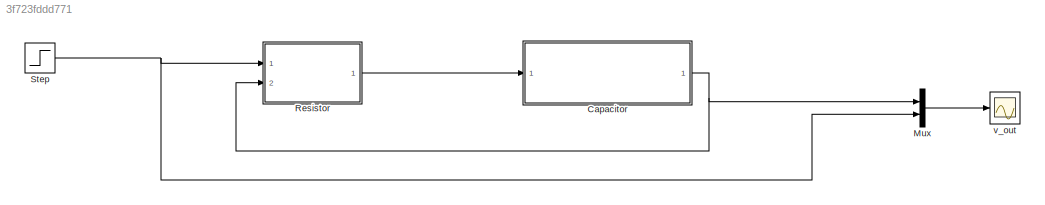
MODEL slx_3f723fddd771
KIND model
CONFIG AbsTol = auto
CONFIG EnableMultiTasking = off
CONFIG FixedStep = auto
CONFIG MaxStep = auto
CONFIG MinStep = auto
CONFIG PreLoadFcn = R =1e2;\nc =1e-2;
CONFIG RelTol = 1e-3
CONFIG SampleTimeConstraint = Unconstrained
CONFIG Solver = VariableStepAuto
CONFIG SolverName = VariableStepAuto
CONFIG StartTime = 0.0
CONFIG StopTime = 10.0
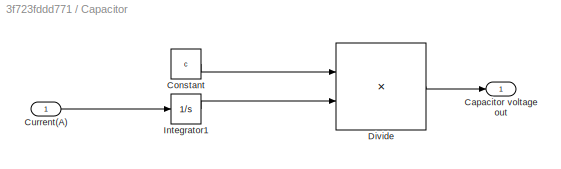
BLOCK [SubSystem] Capacitor 
  Ports = [1, 1]
  RequestExecContextInheritance = off
BLOCK [Outport] Capacitor /Capacitor voltage out
  IconDisplay = Port number
BLOCK [Constant] Capacitor /Constant 
  Value = c
BLOCK [Inport] Capacitor /Current(A)
  IconDisplay = Port number
BLOCK [Product] Capacitor /Divide 
  InputSameDT = off
  Inputs = /*
  OutDataTypeStr = Inherit: Inherit via internal rule
  Ports = [2, 1]
  RndMeth = Floor
  SaturateOnIntegerOverflow = off
BLOCK [Integrator] Capacitor /Integrator1 
  Ports = [1, 1]
BLOCK [Mux] Mux
  DisplayOption = bar
  Inputs = 2
  Ports = [2, 1]
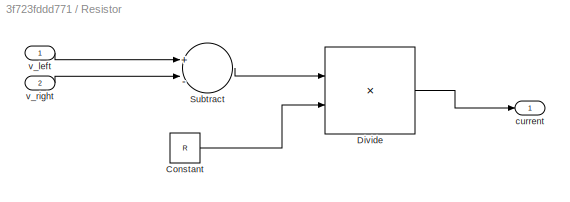
BLOCK [SubSystem] Resistor 
  Ports = [2, 1]
  RequestExecContextInheritance = off
BLOCK [Constant] Resistor /Constant 
  Value = R
BLOCK [Product] Resistor /Divide 
  InputSameDT = off
  Inputs = */
  OutDataTypeStr = Inherit: Inherit via internal rule
  Ports = [2, 1]
  RndMeth = Floor
  SaturateOnIntegerOverflow = off
BLOCK [Sum] Resistor /Subtract 
  InputSameDT = off
  Inputs = +|-
  OutDataTypeStr = Inherit: Inherit via internal rule
  Ports = [2, 1]
  SaturateOnIntegerOverflow = off
BLOCK [Outport] Resistor /current
  IconDisplay = Port number
BLOCK [Inport] Resistor /v_left
  IconDisplay = Port number
BLOCK [Inport] Resistor /v_right
  IconDisplay = Port number
  Port = 2
BLOCK [Step] Step 
  SampleTime = 0
BLOCK [Scope] v_out
  Floating = off
  NumInputPorts = 1
  Ports = [1]
  ScopeSpecificationString = Simulink.scopes.TimeScopeBlockCfg('CurrentConfiguration', extmgr.ConfigurationSet(extmgr.Configuration('Core','General UI',true),extmgr.Configuration('Core','Source UI',true),extmgr.Configuration('Sources','WiredSimulink',true),extmgr.Configuration('Visuals','Time Domain',true,'SerializedDisplays',{struct('MinYLimReal','-0.125','MaxYLimReal','1.125','YLabelReal','','MinYLimMag','0.00000','MaxYLimM...<+1373ch>
LINE Capacitor /Constant :1 -> Capacitor /Divide :1
LINE Capacitor /Current(A):1 -> Capacitor /Integrator1 :1
LINE Capacitor /Divide :1 -> Capacitor /Capacitor voltage out:1
LINE Capacitor /Integrator1 :1 -> Capacitor /Divide :2
NET Capacitor :1 -> Mux:1, Resistor :2
LINE Mux:1 -> v_out:1
LINE Resistor /Constant :1 -> Resistor /Divide :2
LINE Resistor /Divide :1 -> Resistor /current:1
LINE Resistor /Subtract :1 -> Resistor /Divide :1
LINE Resistor /v_left:1 -> Resistor /Subtract :1
LINE Resistor /v_right:1 -> Resistor /Subtract :2
LINE Resistor :1 -> Capacitor :1
NET Step :1 -> Mux:2, Resistor :1
note: NET lines group one-source signal fan-out (src -> all destinations, sorted); 1:1 wires keep LINE
